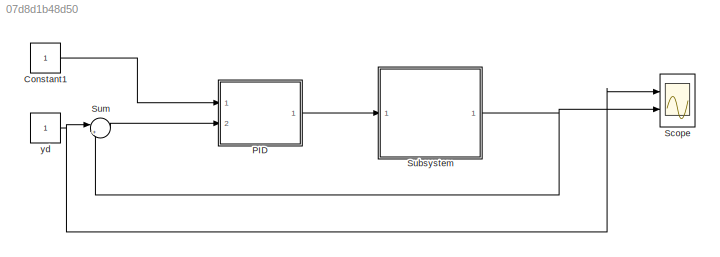
MODEL slx_07d8d1b48d50
KIND model
CONFIG AbsTol = auto
CONFIG EnableMultiTasking = off
CONFIG FixedStep = auto
CONFIG MaxStep = auto
CONFIG MinStep = auto
CONFIG RelTol = 1e-3
CONFIG SampleTimeConstraint = Unconstrained
CONFIG Solver = VariableStepAuto
CONFIG SolverName = VariableStepAuto
CONFIG StartTime = 0.0
CONFIG StopTime = 10.0
BLOCK [Constant] Constant1
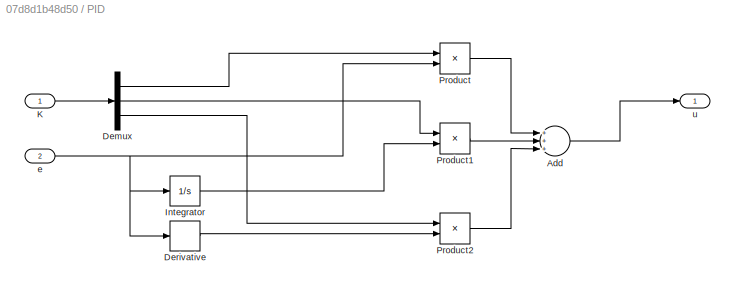
BLOCK [SubSystem] PID
  Ports = [2, 1]
  RequestExecContextInheritance = off
BLOCK [Sum] PID/Add
  InputSameDT = off
  Inputs = +++
  OutDataTypeStr = Inherit: Inherit via internal rule
  Ports = [3, 1]
  SaturateOnIntegerOverflow = off
BLOCK [Demux] PID/Demux
  DisplayOption = bar
  Outputs = 3
  Ports = [1, 3]
BLOCK [Derivative] PID/Derivative
BLOCK [Integrator] PID/Integrator
  Ports = [1, 1]
BLOCK [Inport] PID/K
  IconDisplay = Port number
BLOCK [Product] PID/Product
  InputSameDT = off
  OutDataTypeStr = Inherit: Inherit via internal rule
  Ports = [2, 1]
  RndMeth = Floor
  SaturateOnIntegerOverflow = off
BLOCK [Product] PID/Product1
  InputSameDT = off
  OutDataTypeStr = Inherit: Inherit via internal rule
  Ports = [2, 1]
  RndMeth = Floor
  SaturateOnIntegerOverflow = off
BLOCK [Product] PID/Product2
  InputSameDT = off
  OutDataTypeStr = Inherit: Inherit via internal rule
  Ports = [2, 1]
  RndMeth = Floor
  SaturateOnIntegerOverflow = off
BLOCK [Inport] PID/e
  IconDisplay = Port number
  Port = 2
BLOCK [Outport] PID/u
  IconDisplay = Port number
BLOCK [Scope] Scope
  Floating = off
  NumInputPorts = 2
  Ports = [2]
  ScopeSpecificationString = Simulink.scopes.TimeScopeBlockCfg('CurrentConfiguration', extmgr.ConfigurationSet(extmgr.Configuration('Core','General UI',true),extmgr.Configuration('Core','Source UI',true),extmgr.Configuration('Sources','WiredSimulink',true),extmgr.Configuration('Visuals','Time Domain',true),extmgr.Configuration('Tools','Plot Navigation',true),extmgr.Configuration('Tools','Measurements',true,'Version','2018a'))...<+19ch>
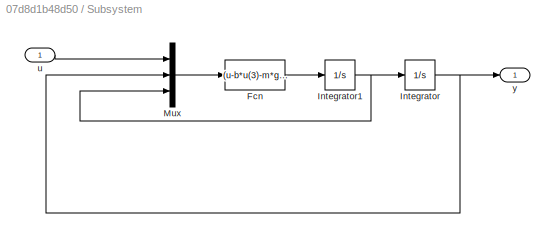
BLOCK [SubSystem] Subsystem
  Ports = [1, 1]
  RequestExecContextInheritance = off
BLOCK [Fcn] Subsystem/Fcn
  Expr = (u-b*u(3)-m*g*l*sin(u(2)))/(m*l^2)
BLOCK [Integrator] Subsystem/Integrator
  Ports = [1, 1]
BLOCK [Integrator] Subsystem/Integrator1
  Ports = [1, 1]
BLOCK [Mux] Subsystem/Mux
  DisplayOption = bar
  Inputs = 3
  Ports = [3, 1]
BLOCK [Inport] Subsystem/u
  IconDisplay = Port number
BLOCK [Outport] Subsystem/y
  IconDisplay = Port number
BLOCK [Sum] Sum
  IconShape = round
  InputSameDT = off
  Inputs = |+-
  OutDataTypeStr = Inherit: Inherit via internal rule
  Ports = [2, 1]
  SaturateOnIntegerOverflow = off
BLOCK [Constant] yd
LINE Constant1:1 -> PID:1
LINE PID/Add:1 -> PID/u:1
LINE PID/Demux:1 -> PID/Product:1
LINE PID/Demux:2 -> PID/Product1:1
LINE PID/Demux:3 -> PID/Product2:1
LINE PID/Derivative:1 -> PID/Product2:2
LINE PID/Integrator:1 -> PID/Product1:2
LINE PID/K:1 -> PID/Demux:1
LINE PID/Product1:1 -> PID/Add:2
LINE PID/Product2:1 -> PID/Add:3
LINE PID/Product:1 -> PID/Add:1
NET PID/e:1 -> PID/Derivative:1, PID/Integrator:1, PID/Product:2
LINE PID:1 -> Subsystem:1
LINE Subsystem/Fcn:1 -> Subsystem/Integrator1:1
NET Subsystem/Integrator1:1 -> Subsystem/Integrator:1, Subsystem/Mux:3
NET Subsystem/Integrator:1 -> Subsystem/Mux:2, Subsystem/y:1
LINE Subsystem/Mux:1 -> Subsystem/Fcn:1
LINE Subsystem/u:1 -> Subsystem/Mux:1
NET Subsystem:1 -> Scope:2, Sum:2
LINE Sum:1 -> PID:2
NET yd:1 -> Scope:1, Sum:1
note: NET lines group one-source signal fan-out (src -> all destinations, sorted); 1:1 wires keep LINE
